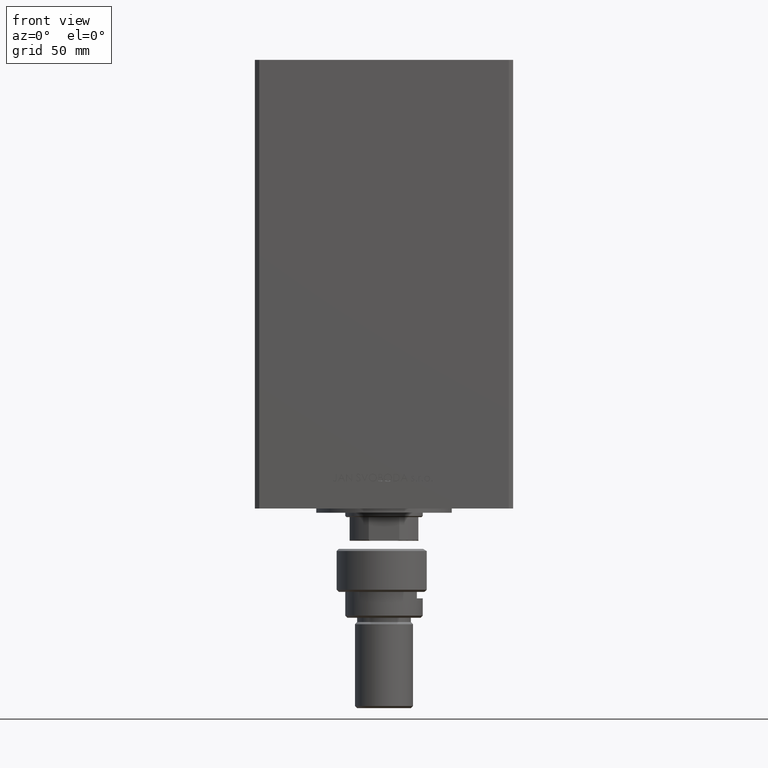
[diagram: clean part render]
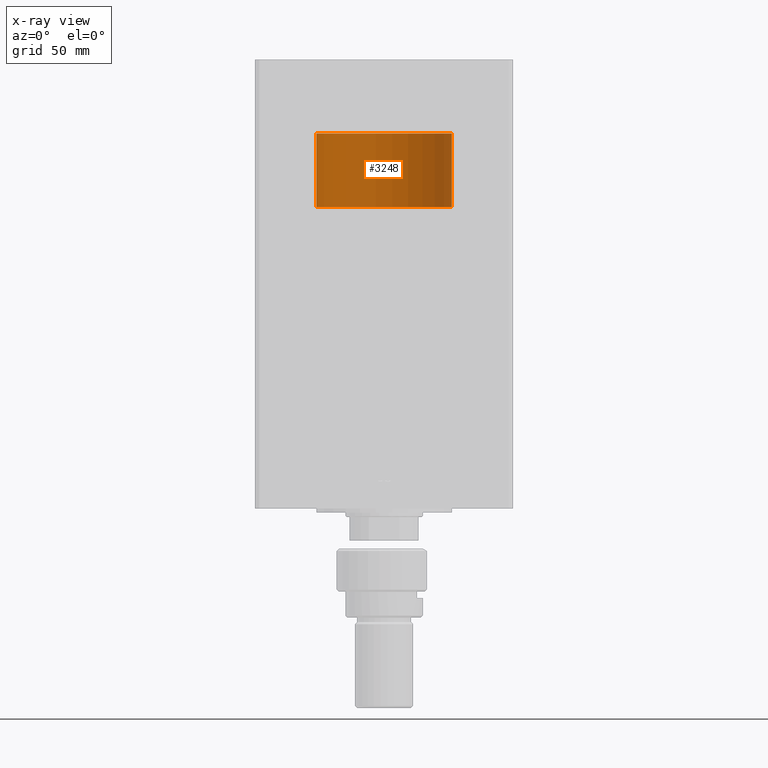
[diagram: x-ray — body ghosted, one internal face saturated and labeled with its STEP entity id]
A machine part, front view, then the same camera in x-ray: the body is ghosted and one INTERNAL B-rep face — a face not visible from any outside direction — is saturated and labeled: STEP entity #3248.
In plain terms, the highlighted cylindrical surface (partial cylindrical patch) has radius 31.5 mm, axis along (0, -0, 1).
Its self-contained STEP definition (entity closure, byte-faithful):
#685 = CARTESIAN_POINT ( 'NONE',  ( 31.50000000000000000, 3.857637417314162689E-15, 0.000000000000000000 ) ) ;
#1808 = CYLINDRICAL_SURFACE ( 'NONE', #18699, 31.50000000000000000 ) ;
#3248 = ADVANCED_FACE ( 'NONE', ( #17838 ), #1808, .T. ) ;
#4276 = DIRECTION ( 'NONE',  ( 1.000000000000000000, 0.000000000000000000, 0.000000000000000000 ) ) ;
#5878 = AXIS2_PLACEMENT_3D ( 'NONE', #45784, #10908, #4276 ) ;
#7760 = CIRCLE ( 'NONE', #31331, 31.50000000000000000 ) ;
#8719 = EDGE_CURVE ( 'NONE', #45201, #33557, #31888, .T. ) ;
#8881 = CARTESIAN_POINT ( 'NONE',  ( -31.50000000000000000, 0.000000000000000000, 0.000000000000000000 ) ) ;
#9010 = ORIENTED_EDGE ( 'NONE', *, *, #31101, .T. ) ;
#9954 = CARTESIAN_POINT ( 'NONE',  ( 31.50000000000000000, 3.857637417314162689E-15, 34.25000000000000000 ) ) ;
#10908 = DIRECTION ( 'NONE',  ( 0.000000000000000000, 0.000000000000000000, 1.000000000000000000 ) ) ;
#12597 = DIRECTION ( 'NONE',  ( 1.000000000000000000, 0.000000000000000000, 0.000000000000000000 ) ) ;
#13226 = EDGE_CURVE ( 'NONE', #33557, #31700, #41409, .T. ) ;
#13263 = ORIENTED_EDGE ( 'NONE', *, *, #13226, .F. ) ;
#14218 = ORIENTED_EDGE ( 'NONE', *, *, #8719, .F. ) ;
#16115 = EDGE_CURVE ( 'NONE', #38834, #31700, #7760, .T. ) ;
#16406 = CARTESIAN_POINT ( 'NONE',  ( 0.000000000000000000, 0.000000000000000000, 0.000000000000000000 ) ) ;
#17838 = FACE_OUTER_BOUND ( 'NONE', #41009, .T. ) ;
#18036 = VECTOR ( 'NONE', #43928, 1000.000000000000000 ) ;
#18699 = AXIS2_PLACEMENT_3D ( 'NONE', #40753, #41254, #33112 ) ;
#19755 = LINE ( 'NONE', #31965, #18036 ) ;
#20713 = ORIENTED_EDGE ( 'NONE', *, *, #16115, .T. ) ;
#31101 = EDGE_CURVE ( 'NONE', #45201, #38834, #19755, .T. ) ;
#31133 = CARTESIAN_POINT ( 'NONE',  ( -31.50000000000000000, 0.000000000000000000, 34.25000000000000000 ) ) ;
#31331 = AXIS2_PLACEMENT_3D ( 'NONE', #16406, #46705, #12597 ) ;
#31700 = VERTEX_POINT ( 'NONE', #8881 ) ;
#31888 = CIRCLE ( 'NONE', #5878, 31.50000000000000000 ) ;
#31965 = CARTESIAN_POINT ( 'NONE',  ( 31.50000000000000000, 3.857637417314162689E-15, 34.25000000000000000 ) ) ;
#33112 = DIRECTION ( 'NONE',  ( -1.000000000000000000, 0.000000000000000000, 0.000000000000000000 ) ) ;
#33557 = VERTEX_POINT ( 'NONE', #31133 ) ;
#37783 = VECTOR ( 'NONE', #41660, 1000.000000000000000 ) ;
#38834 = VERTEX_POINT ( 'NONE', #685 ) ;
#40753 = CARTESIAN_POINT ( 'NONE',  ( 0.000000000000000000, 0.000000000000000000, 34.25000000000000000 ) ) ;
#41009 = EDGE_LOOP ( 'NONE', ( #14218, #9010, #20713, #13263 ) ) ;
#41161 = CARTESIAN_POINT ( 'NONE',  ( -31.50000000000000000, 0.000000000000000000, 34.25000000000000000 ) ) ;
#41254 = DIRECTION ( 'NONE',  ( -0.000000000000000000, -0.000000000000000000, -1.000000000000000000 ) ) ;
#41409 = LINE ( 'NONE', #41161, #37783 ) ;
#41660 = DIRECTION ( 'NONE',  ( -0.000000000000000000, -0.000000000000000000, -1.000000000000000000 ) ) ;
#43928 = DIRECTION ( 'NONE',  ( -0.000000000000000000, -0.000000000000000000, -1.000000000000000000 ) ) ;
#45201 = VERTEX_POINT ( 'NONE', #9954 ) ;
#45784 = CARTESIAN_POINT ( 'NONE',  ( 0.000000000000000000, 0.000000000000000000, 34.25000000000000000 ) ) ;
#46705 = DIRECTION ( 'NONE',  ( 0.000000000000000000, 0.000000000000000000, 1.000000000000000000 ) ) ;